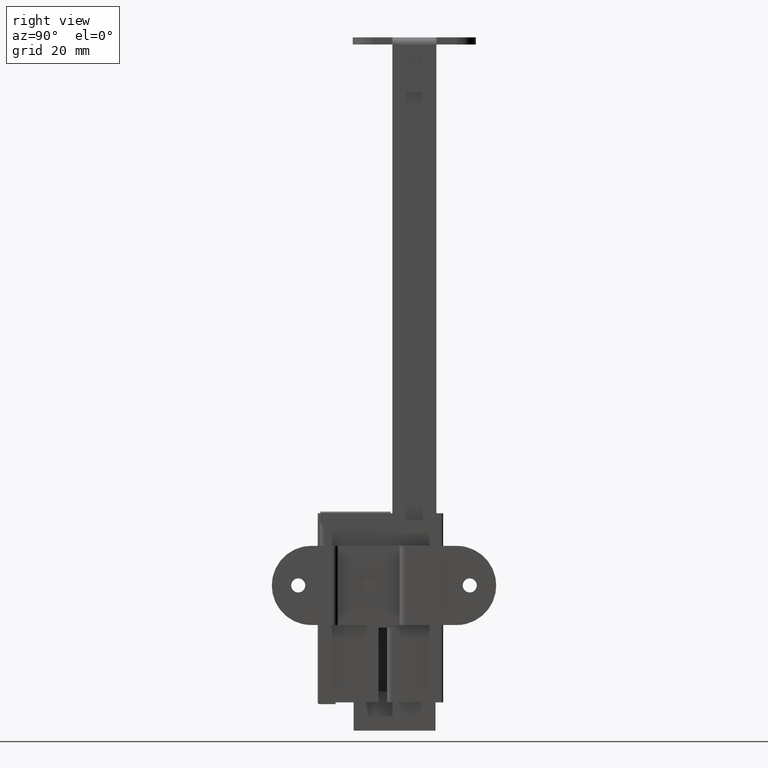
[diagram: clean part render]
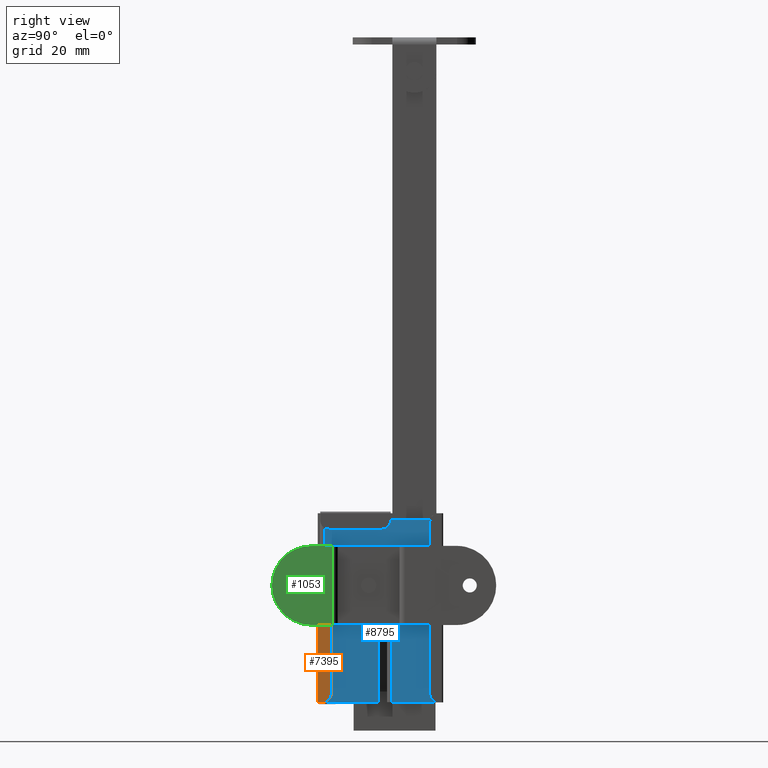
[diagram: same view with three faces highlighted in distinct colors, each labeled with its STEP entity id]
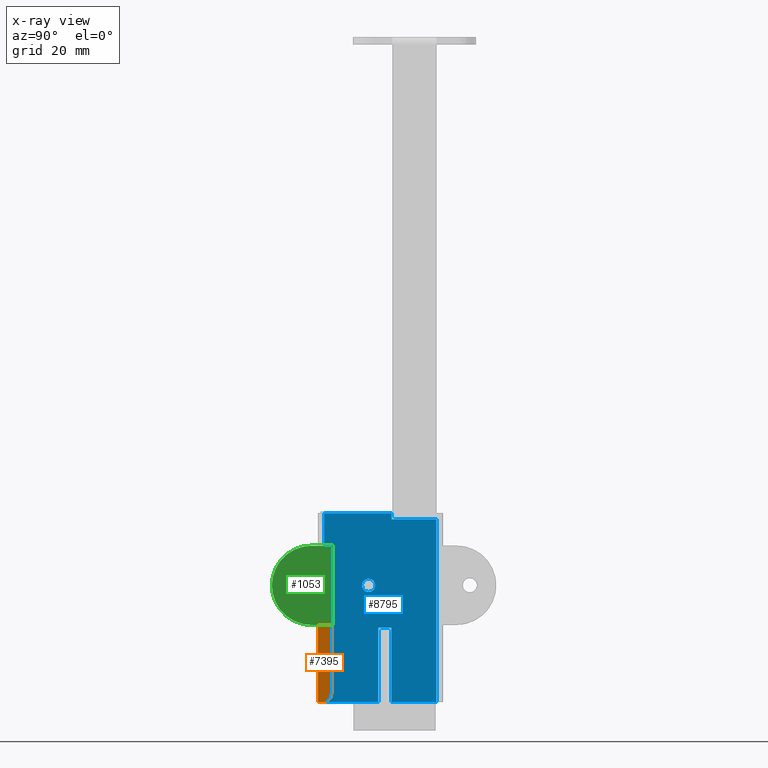
[diagram: x-ray of the same camera — body ghosted, the three highlighted faces saturated]
A machine part, right view with three faces highlighted in distinct colors.
The next image is the same camera in x-ray (body ghosted, the three faces saturated) — at least one of them is partly hidden behind the body in this view.
Their STEP definitions:

[orange] entity #7395 — the highlighted face is a freeform B-spline surface patch.
#6308=CARTESIAN_POINT('',(5.600006000000090,-20.900002000000050,-216.599985000000000));
#6309=VERTEX_POINT('',#6308);
#6310=CARTESIAN_POINT('',(5.600006000000090,-18.900002000000050,-214.599985000000000));
#6311=VERTEX_POINT('',#6310);
#6312=CARTESIAN_POINT('',(5.600006000000090,-20.900002000000050,-216.599985000000000));
#6313=CARTESIAN_POINT('',(5.600006000000091,-18.900002000000040,-216.599985000000000));
#6314=CARTESIAN_POINT('',(5.600006000000090,-18.900002000000050,-214.599985000000000));
#6322=(BOUNDED_CURVE()B_SPLINE_CURVE(2,(#6312,#6313,#6314),.UNSPECIFIED.,.F.,.U.)CURVE()GEOMETRIC_REPRESENTATION_ITEM()QUASI_UNIFORM_CURVE()RATIONAL_B_SPLINE_CURVE((1.0,0.707106781186548,1.0))REPRESENTATION_ITEM(''));
#6323=EDGE_CURVE('',#6309,#6311,#6322,.T.);
#6644=CARTESIAN_POINT('',(5.600006000000090,-18.900002000000050,-188.599985000000000));
#6645=VERTEX_POINT('',#6644);
#6665=CARTESIAN_POINT('',(5.600006000000090,-21.950002000000051,-188.599985000000000));
#6666=VERTEX_POINT('',#6665);
#6672=CARTESIAN_POINT('',(5.600006000000090,-21.950002000000051,-188.599985000000000));
#6673=CARTESIAN_POINT('',(5.600006000000090,-18.900002000000050,-188.599985000000000));
#6674=QUASI_UNIFORM_CURVE('',1,(#6672,#6673),.UNSPECIFIED.,.F.,.U.);
#6675=EDGE_CURVE('',#6666,#6645,#6674,.T.);
#7018=CARTESIAN_POINT('',(5.600006000000090,-21.950002000000051,-216.599985000000000));
#7019=VERTEX_POINT('',#7018);
#7025=CARTESIAN_POINT('',(5.600006000000090,-21.950002000000051,-216.599985000000000));
#7026=CARTESIAN_POINT('',(5.600006000000090,-21.950002000000051,-188.599985000000000));
#7027=QUASI_UNIFORM_CURVE('',1,(#7025,#7026),.UNSPECIFIED.,.F.,.U.);
#7028=EDGE_CURVE('',#7019,#6666,#7027,.T.);
#7353=CARTESIAN_POINT('',(5.600006000000090,-21.950002000000051,-216.599985000000000));
#7354=CARTESIAN_POINT('',(5.600006000000090,-20.900002000000050,-216.599985000000000));
#7355=QUASI_UNIFORM_CURVE('',1,(#7353,#7354),.UNSPECIFIED.,.F.,.U.);
#7356=EDGE_CURVE('',#7019,#6309,#7355,.T.);
#7379=CARTESIAN_POINT('',(5.600006000000090,-22.102350231662491,-187.201390799573690));
#7380=CARTESIAN_POINT('',(5.600006000000090,-22.102350231662491,-217.998591717401810));
#7381=CARTESIAN_POINT('',(5.600006000000090,-18.747653931952360,-187.201390799573690));
#7382=CARTESIAN_POINT('',(5.600006000000090,-18.747653931952360,-217.998591717401810));
#7383=B_SPLINE_SURFACE_WITH_KNOTS('',1,1,((#7379,#7381),(#7380,#7382)),.UNSPECIFIED.,.F.,.F.,.U.,(2,2),(2,2),(0.0,30.797200917828089),(0.0,3.354696299710128),.UNSPECIFIED.);
#7384=ORIENTED_EDGE('',*,*,#7356,.T.);
#7385=ORIENTED_EDGE('',*,*,#6323,.T.);
#7386=CARTESIAN_POINT('',(5.600006000000090,-18.900002000000050,-214.599985000000000));
#7387=CARTESIAN_POINT('',(5.600006000000090,-18.900002000000050,-188.599985000000000));
#7388=QUASI_UNIFORM_CURVE('',1,(#7386,#7387),.UNSPECIFIED.,.F.,.U.);
#7389=EDGE_CURVE('',#6311,#6645,#7388,.T.);
#7390=ORIENTED_EDGE('',*,*,#7389,.T.);
#7391=ORIENTED_EDGE('',*,*,#6675,.F.);
#7392=ORIENTED_EDGE('',*,*,#7028,.F.);
#7393=EDGE_LOOP('',(#7384,#7385,#7390,#7391,#7392));
#7394=FACE_OUTER_BOUND('',#7393,.T.);
#7395=ADVANCED_FACE('',(#7394),#7383,.T.);

[blue] entity #8795 — the highlighted face is a freeform B-spline surface patch.
#7955=CARTESIAN_POINT('',(5.199997000000000,-8.910487710705098,-189.822933645906800));
#7956=VERTEX_POINT('',#7955);
#7957=CARTESIAN_POINT('',(5.199997000000000,-10.400002000000020,-191.499985000000010));
#7958=VERTEX_POINT('',#7957);
#7959=CARTESIAN_POINT('',(5.199997000000000,-8.910487710705098,-189.822933645906770));
#7960=CARTESIAN_POINT('',(5.199997000000001,-8.900002000000022,-189.911148818391810));
#7961=CARTESIAN_POINT('',(5.199997000000000,-8.900002000000022,-189.999985000000010));
#7962=CARTESIAN_POINT('',(5.199997000000001,-8.900002000000022,-191.499985000000070));
#7963=CARTESIAN_POINT('',(5.199997000000000,-10.400002000000020,-191.499985000000010));
#7971=(BOUNDED_CURVE()B_SPLINE_CURVE(2,(#7959,#7960,#7961,#7962,#7963),.UNSPECIFIED.,.F.,.U.)B_SPLINE_CURVE_WITH_KNOTS((3,2,3),(0.229562473037271,0.250000000000000,0.500000000000000),.UNSPECIFIED.)CURVE()GEOMETRIC_REPRESENTATION_ITEM()RATIONAL_B_SPLINE_CURVE((0.956026753250254,0.976055947773198,1.0,0.707106781186548,1.0))REPRESENTATION_ITEM(''));
#7972=EDGE_CURVE('',#7956,#7958,#7971,.T.);
#8013=CARTESIAN_POINT('',(5.199997000000000,-11.897204197430071,-190.091557812617200));
#8014=VERTEX_POINT('',#8013);
#8020=CARTESIAN_POINT('',(5.199997000000000,-10.400002000000020,-191.499985000000010));
#8021=CARTESIAN_POINT('',(5.199997000000000,-11.811061094098466,-191.499985000000040));
#8022=CARTESIAN_POINT('',(5.199997000000000,-11.897204197430067,-190.091557812617220));
#8030=(BOUNDED_CURVE()B_SPLINE_CURVE(2,(#8020,#8021,#8022),.UNSPECIFIED.,.F.,.U.)B_SPLINE_CURVE_WITH_KNOTS((3,3),(0.500000000000000,0.739332961477901),.UNSPECIFIED.)CURVE()GEOMETRIC_REPRESENTATION_ITEM()RATIONAL_B_SPLINE_CURVE((1.0,0.719603994178327,0.976072040035659))REPRESENTATION_ITEM(''));
#8031=EDGE_CURVE('',#7958,#8014,#8030,.T.);
#8054=CARTESIAN_POINT('',(5.199997000000000,-10.400002000000020,-188.499985000000010));
#8055=VERTEX_POINT('',#8054);
#8056=CARTESIAN_POINT('',(5.199997000000000,-10.400002000000020,-188.499985000000010));
#8057=CARTESIAN_POINT('',(5.199997000000000,-9.067740214870566,-188.499985000000070));
#8058=CARTESIAN_POINT('',(5.199997000000000,-8.910487710705098,-189.822933645906830));
#8066=(BOUNDED_CURVE()B_SPLINE_CURVE(2,(#8056,#8057,#8058),.UNSPECIFIED.,.F.,.U.)B_SPLINE_CURVE_WITH_KNOTS((3,3),(0.0,0.229562473037270),.UNSPECIFIED.)CURVE()GEOMETRIC_REPRESENTATION_ITEM()RATIONAL_B_SPLINE_CURVE((1.0,0.731050833413350,0.956026753250253))REPRESENTATION_ITEM(''));
#8067=EDGE_CURVE('',#8055,#7956,#8066,.T.);
#8069=CARTESIAN_POINT('',(5.199997000000000,-11.897204197430069,-190.091557812617200));
#8070=CARTESIAN_POINT('',(5.199997000000000,-11.900002000000022,-190.045814148272140));
#8071=CARTESIAN_POINT('',(5.199997000000000,-11.900002000000020,-189.999985000000010));
#8072=CARTESIAN_POINT('',(5.199997000000001,-11.900002000000020,-188.499985000000010));
#8073=CARTESIAN_POINT('',(5.199997000000000,-10.400002000000020,-188.499985000000010));
#8081=(BOUNDED_CURVE()B_SPLINE_CURVE(2,(#8069,#8070,#8071,#8072,#8073),.UNSPECIFIED.,.F.,.U.)B_SPLINE_CURVE_WITH_KNOTS((3,2,3),(0.739332961477900,0.750000000000000,1.0),.UNSPECIFIED.)CURVE()GEOMETRIC_REPRESENTATION_ITEM()RATIONAL_B_SPLINE_CURVE((0.976072040035657,0.987502787008220,1.0,0.707106781186548,1.0))REPRESENTATION_ITEM(''));
#8082=EDGE_CURVE('',#8014,#8055,#8081,.T.);
#8135=CARTESIAN_POINT('',(5.199997000000000,-5.200011999999901,-199.599985000000000));
#8136=VERTEX_POINT('',#8135);
#8159=CARTESIAN_POINT('',(5.199997000000000,-5.200011999999901,-216.599985000000000));
#8160=VERTEX_POINT('',#8159);
#8176=CARTESIAN_POINT('',(5.199997000000000,-5.200011999999901,-199.599985000000000));
#8177=CARTESIAN_POINT('',(5.199997000000000,-5.200011999999901,-216.599985000000000));
#8178=QUASI_UNIFORM_CURVE('',1,(#8176,#8177),.UNSPECIFIED.,.F.,.U.);
#8179=EDGE_CURVE('',#8136,#8160,#8178,.T.);
#8289=CARTESIAN_POINT('',(5.199997000000000,-8.200011999999999,-216.599985000000000));
#8290=VERTEX_POINT('',#8289);
#8305=CARTESIAN_POINT('',(5.199997000000000,-8.200011999999999,-199.599985000000000));
#8306=VERTEX_POINT('',#8305);
#8312=CARTESIAN_POINT('',(5.199997000000000,-8.200011999999999,-216.599985000000000));
#8313=CARTESIAN_POINT('',(5.199997000000000,-8.200011999999999,-199.599985000000000));
#8314=QUASI_UNIFORM_CURVE('',1,(#8312,#8313),.UNSPECIFIED.,.F.,.U.);
#8315=EDGE_CURVE('',#8290,#8306,#8314,.T.);
#8332=CARTESIAN_POINT('',(5.199997000000000,-8.200011999999999,-199.599985000000000));
#8333=CARTESIAN_POINT('',(5.199997000000000,-5.200011999999901,-199.599985000000000));
#8334=QUASI_UNIFORM_CURVE('',1,(#8332,#8333),.UNSPECIFIED.,.F.,.U.);
#8335=EDGE_CURVE('',#8306,#8136,#8334,.T.);
#8396=CARTESIAN_POINT('',(5.199997000000000,-5.200011999999901,-173.599985000000000));
#8397=VERTEX_POINT('',#8396);
#8403=CARTESIAN_POINT('',(5.199997000000000,-5.200011999999901,-174.999985000000010));
#8404=VERTEX_POINT('',#8403);
#8405=CARTESIAN_POINT('',(5.199997000000000,-5.200011999999901,-174.999985000000010));
#8406=CARTESIAN_POINT('',(5.199997000000000,-5.200011999999901,-173.599985000000000));
#8407=QUASI_UNIFORM_CURVE('',1,(#8405,#8406),.UNSPECIFIED.,.F.,.U.);
#8408=EDGE_CURVE('',#8404,#8397,#8407,.T.);
#8423=CARTESIAN_POINT('',(5.199997000000000,5.0,-174.999985000000010));
#8424=VERTEX_POINT('',#8423);
#8467=CARTESIAN_POINT('',(5.199997000000000,5.0,-174.999985000000010));
#8468=CARTESIAN_POINT('',(5.199997000000000,-5.200011999999901,-174.999985000000010));
#8469=QUASI_UNIFORM_CURVE('',1,(#8467,#8468),.UNSPECIFIED.,.F.,.U.);
#8470=EDGE_CURVE('',#8424,#8404,#8469,.T.);
#8480=CARTESIAN_POINT('',(5.199997000000000,5.0,-216.599985000000000));
#8481=VERTEX_POINT('',#8480);
#8482=CARTESIAN_POINT('',(5.199997000000000,-5.200011999999901,-216.599985000000000));
#8483=CARTESIAN_POINT('',(5.199997000000000,5.0,-216.599985000000000));
#8484=QUASI_UNIFORM_CURVE('',1,(#8482,#8483),.UNSPECIFIED.,.F.,.U.);
#8485=EDGE_CURVE('',#8160,#8481,#8484,.T.);
#8540=CARTESIAN_POINT('',(5.199997000000000,-20.500002000000048,-173.599985000000000));
#8541=VERTEX_POINT('',#8540);
#8557=CARTESIAN_POINT('',(5.199997000000000,-20.500002000000048,-173.599985000000000));
#8558=CARTESIAN_POINT('',(5.199997000000000,-5.200011999999901,-173.599985000000000));
#8559=QUASI_UNIFORM_CURVE('',1,(#8557,#8558),.UNSPECIFIED.,.F.,.U.);
#8560=EDGE_CURVE('',#8541,#8397,#8559,.T.);
#8673=CARTESIAN_POINT('',(5.199997000000000,5.0,-174.999985000000010));
#8674=CARTESIAN_POINT('',(5.199997000000000,5.0,-216.599985000000000));
#8675=QUASI_UNIFORM_CURVE('',1,(#8673,#8674),.UNSPECIFIED.,.F.,.U.);
#8676=EDGE_CURVE('',#8424,#8481,#8675,.T.);
#8697=CARTESIAN_POINT('',(5.199997000000000,-20.500002000000048,-216.599985000000000));
#8698=VERTEX_POINT('',#8697);
#8699=CARTESIAN_POINT('',(5.199997000000000,-20.500002000000048,-173.599985000000000));
#8700=CARTESIAN_POINT('',(5.199997000000000,-20.500002000000048,-216.599985000000000));
#8701=QUASI_UNIFORM_CURVE('',1,(#8699,#8700),.UNSPECIFIED.,.F.,.U.);
#8702=EDGE_CURVE('',#8541,#8698,#8701,.T.);
#8768=CARTESIAN_POINT('',(5.199997000000000,-21.773727050476101,-218.747841067857000));
#8769=CARTESIAN_POINT('',(5.199997000000000,-21.773727050476101,-171.452140081191800));
#8770=CARTESIAN_POINT('',(5.199997000000000,6.273725734439403,-218.747841067857000));
#8771=CARTESIAN_POINT('',(5.199997000000000,6.273725734439403,-171.452140081191800));
#8772=B_SPLINE_SURFACE_WITH_KNOTS('',1,1,((#8768,#8770),(#8769,#8771)),.UNSPECIFIED.,.F.,.F.,.U.,(2,2),(2,2),(0.0,47.295700986665217),(0.0,28.047452784915510),.UNSPECIFIED.);
#8773=ORIENTED_EDGE('',*,*,#8335,.T.);
#8774=ORIENTED_EDGE('',*,*,#8179,.T.);
#8775=ORIENTED_EDGE('',*,*,#8485,.T.);
#8776=ORIENTED_EDGE('',*,*,#8676,.F.);
#8777=ORIENTED_EDGE('',*,*,#8470,.T.);
#8778=ORIENTED_EDGE('',*,*,#8408,.T.);
#8779=ORIENTED_EDGE('',*,*,#8560,.F.);
#8780=ORIENTED_EDGE('',*,*,#8702,.T.);
#8781=CARTESIAN_POINT('',(5.199997000000000,-20.500002000000048,-216.599985000000000));
#8782=CARTESIAN_POINT('',(5.199997000000000,-8.200011999999999,-216.599985000000000));
#8783=QUASI_UNIFORM_CURVE('',1,(#8781,#8782),.UNSPECIFIED.,.F.,.U.);
#8784=EDGE_CURVE('',#8698,#8290,#8783,.T.);
#8785=ORIENTED_EDGE('',*,*,#8784,.T.);
#8786=ORIENTED_EDGE('',*,*,#8315,.T.);
#8787=EDGE_LOOP('',(#8773,#8774,#8775,#8776,#8777,#8778,#8779,#8780,#8785,#8786));
#8788=FACE_OUTER_BOUND('',#8787,.T.);
#8789=ORIENTED_EDGE('',*,*,#8031,.T.);
#8790=ORIENTED_EDGE('',*,*,#8082,.T.);
#8791=ORIENTED_EDGE('',*,*,#8067,.T.);
#8792=ORIENTED_EDGE('',*,*,#7972,.T.);
#8793=EDGE_LOOP('',(#8789,#8790,#8791,#8792));
#8794=FACE_BOUND('',#8793,.T.);
#8795=ADVANCED_FACE('',(#8788,#8794),#8772,.F.);

[green] entity #1053 — the highlighted face is a freeform B-spline surface patch.
#252=CARTESIAN_POINT('',(9.699996999330919,-24.811183778735540,-189.811129865232800));
#253=VERTEX_POINT('',#252);
#254=CARTESIAN_POINT('',(9.699997000000000,-26.400002000000050,-191.599988000000000));
#255=VERTEX_POINT('',#254);
#256=CARTESIAN_POINT('',(9.699996999330919,-24.811183778735533,-189.811129865232800));
#257=CARTESIAN_POINT('',(9.699997000000000,-24.799999000000053,-189.905226225695570));
#258=CARTESIAN_POINT('',(9.699997000000000,-24.799999000000049,-189.999985000000010));
#259=CARTESIAN_POINT('',(9.699997000000002,-24.799999000000046,-191.599988000000000));
#260=CARTESIAN_POINT('',(9.699997000000000,-26.400002000000050,-191.599988000000000));
#268=(BOUNDED_CURVE()B_SPLINE_CURVE(2,(#256,#257,#258,#259,#260),.UNSPECIFIED.,.F.,.U.)B_SPLINE_CURVE_WITH_KNOTS((3,2,3),(0.229562472423287,0.250000000000000,0.500000000000000),.UNSPECIFIED.)CURVE()GEOMETRIC_REPRESENTATION_ITEM()RATIONAL_B_SPLINE_CURVE((0.956026752046821,0.976055947053872,1.0,0.707106781186547,1.0))REPRESENTATION_ITEM(''));
#269=EDGE_CURVE('',#253,#255,#268,.T.);
#310=CARTESIAN_POINT('',(9.699996998554337,-27.997020672654219,-190.097662857414290));
#311=VERTEX_POINT('',#310);
#317=CARTESIAN_POINT('',(9.699997000000000,-26.400002000000050,-191.599988000000000));
#318=CARTESIAN_POINT('',(9.699997000000000,-27.905134508536808,-191.599988000000020));
#319=CARTESIAN_POINT('',(9.699996998554337,-27.997020672654219,-190.097662857414260));
#327=(BOUNDED_CURVE()B_SPLINE_CURVE(2,(#317,#318,#319),.UNSPECIFIED.,.F.,.U.)B_SPLINE_CURVE_WITH_KNOTS((3,3),(0.500000000000000,0.739332959881315),.UNSPECIFIED.)CURVE()GEOMETRIC_REPRESENTATION_ITEM()RATIONAL_B_SPLINE_CURVE((1.0,0.719603996048843,0.976072036613873))REPRESENTATION_ITEM(''));
#328=EDGE_CURVE('',#255,#311,#327,.T.);
#351=CARTESIAN_POINT('',(9.699997000000000,-26.400002000000050,-188.399981999999990));
#352=VERTEX_POINT('',#351);
#353=CARTESIAN_POINT('',(9.699997000000000,-26.400002000000050,-188.399981999999990));
#354=CARTESIAN_POINT('',(9.699997000000000,-24.978920103204146,-188.399982000000050));
#355=CARTESIAN_POINT('',(9.699996999330919,-24.811183778735536,-189.811129865232830));
#363=(BOUNDED_CURVE()B_SPLINE_CURVE(2,(#353,#354,#355),.UNSPECIFIED.,.F.,.U.)B_SPLINE_CURVE_WITH_KNOTS((3,3),(0.0,0.229562472423287),.UNSPECIFIED.)CURVE()GEOMETRIC_REPRESENTATION_ITEM()RATIONAL_B_SPLINE_CURVE((1.0,0.731050834132676,0.956026752046821))REPRESENTATION_ITEM(''));
#364=EDGE_CURVE('',#352,#253,#363,.T.);
#366=CARTESIAN_POINT('',(9.699996998554337,-27.997020672654227,-190.097662857414290));
#367=CARTESIAN_POINT('',(9.699997000000000,-28.000005000000051,-190.048869523891260));
#368=CARTESIAN_POINT('',(9.699997000000000,-28.000005000000051,-189.999985000000010));
#369=CARTESIAN_POINT('',(9.699997000000002,-28.000005000000048,-188.399982000000020));
#370=CARTESIAN_POINT('',(9.699997000000000,-26.400002000000050,-188.399981999999990));
#378=(BOUNDED_CURVE()B_SPLINE_CURVE(2,(#366,#367,#368,#369,#370),.UNSPECIFIED.,.F.,.U.)B_SPLINE_CURVE_WITH_KNOTS((3,2,3),(0.739332959881316,0.750000000000000,1.0),.UNSPECIFIED.)CURVE()GEOMETRIC_REPRESENTATION_ITEM()RATIONAL_B_SPLINE_CURVE((0.976072036613874,0.987502785137706,1.0,0.707106781186547,1.0))REPRESENTATION_ITEM(''));
#379=EDGE_CURVE('',#311,#352,#378,.T.);
#927=CARTESIAN_POINT('',(9.699997000000000,-18.599999000000050,-180.999985000000010));
#928=VERTEX_POINT('',#927);
#942=CARTESIAN_POINT('',(9.699997000000000,-18.599999000000050,-198.999985000000010));
#943=VERTEX_POINT('',#942);
#944=CARTESIAN_POINT('',(9.699997000000000,-18.599999000000050,-198.999985000000010));
#945=CARTESIAN_POINT('',(9.699997000000000,-18.599999000000050,-180.999985000000010));
#946=QUASI_UNIFORM_CURVE('',1,(#944,#945),.UNSPECIFIED.,.F.,.U.);
#947=EDGE_CURVE('',#943,#928,#946,.T.);
#1010=CARTESIAN_POINT('',(9.699997000000000,-33.089303593957929,-180.100884761253890));
#1011=CARTESIAN_POINT('',(9.699997000000000,-33.089303593957929,-199.899084112218390));
#1012=CARTESIAN_POINT('',(9.699997000000000,-17.910688912515340,-180.100884761253890));
#1013=CARTESIAN_POINT('',(9.699997000000000,-17.910688912515340,-199.899084112218390));
#1014=B_SPLINE_SURFACE_WITH_KNOTS('',1,1,((#1010,#1012),(#1011,#1013)),.UNSPECIFIED.,.F.,.F.,.U.,(2,2),(2,2),(0.0,19.798199350964470),(0.0,15.178614681442591),.UNSPECIFIED.);
#1015=CARTESIAN_POINT('',(9.699997000000000,-23.399994000000000,-180.999985000000010));
#1016=VERTEX_POINT('',#1015);
#1017=CARTESIAN_POINT('',(9.699997000000000,-23.399994000000000,-198.999985000000010));
#1018=VERTEX_POINT('',#1017);
#1019=CARTESIAN_POINT('',(9.699997000000000,-23.399994000000000,-180.999985000000010));
#1020=CARTESIAN_POINT('',(9.699997000000002,-32.399994000000000,-180.999985000000040));
#1021=CARTESIAN_POINT('',(9.699997000000000,-32.399994000000000,-189.999985000000010));
#1022=CARTESIAN_POINT('',(9.699997000000002,-32.399994000000000,-198.999985000000120));
#1023=CARTESIAN_POINT('',(9.699997000000000,-23.399994000000000,-198.999985000000010));
#1031=(BOUNDED_CURVE()B_SPLINE_CURVE(2,(#1019,#1020,#1021,#1022,#1023),.UNSPECIFIED.,.F.,.U.)B_SPLINE_CURVE_WITH_KNOTS((3,2,3),(0.0,0.500000000000000,1.0),.UNSPECIFIED.)CURVE()GEOMETRIC_REPRESENTATION_ITEM()RATIONAL_B_SPLINE_CURVE((1.0,0.707106781186547,1.0,0.707106781186547,1.0))REPRESENTATION_ITEM(''));
#1032=EDGE_CURVE('',#1016,#1018,#1031,.T.);
#1033=ORIENTED_EDGE('',*,*,#1032,.T.);
#1034=CARTESIAN_POINT('',(9.699997000000000,-23.399994000000000,-198.999985000000010));
#1035=CARTESIAN_POINT('',(9.699997000000000,-18.599999000000050,-198.999985000000010));
#1036=QUASI_UNIFORM_CURVE('',1,(#1034,#1035),.UNSPECIFIED.,.F.,.U.);
#1037=EDGE_CURVE('',#1018,#943,#1036,.T.);
#1038=ORIENTED_EDGE('',*,*,#1037,.T.);
#1039=ORIENTED_EDGE('',*,*,#947,.T.);
#1040=CARTESIAN_POINT('',(9.699997000000000,-23.399994000000000,-180.999985000000010));
#1041=CARTESIAN_POINT('',(9.699997000000000,-18.599999000000050,-180.999985000000010));
#1042=QUASI_UNIFORM_CURVE('',1,(#1040,#1041),.UNSPECIFIED.,.F.,.U.);
#1043=EDGE_CURVE('',#1016,#928,#1042,.T.);
#1044=ORIENTED_EDGE('',*,*,#1043,.F.);
#1045=EDGE_LOOP('',(#1033,#1038,#1039,#1044));
#1046=FACE_OUTER_BOUND('',#1045,.T.);
#1047=ORIENTED_EDGE('',*,*,#328,.T.);
#1048=ORIENTED_EDGE('',*,*,#379,.T.);
#1049=ORIENTED_EDGE('',*,*,#364,.T.);
#1050=ORIENTED_EDGE('',*,*,#269,.T.);
#1051=EDGE_LOOP('',(#1047,#1048,#1049,#1050));
#1052=FACE_BOUND('',#1051,.T.);
#1053=ADVANCED_FACE('',(#1046,#1052),#1014,.T.);